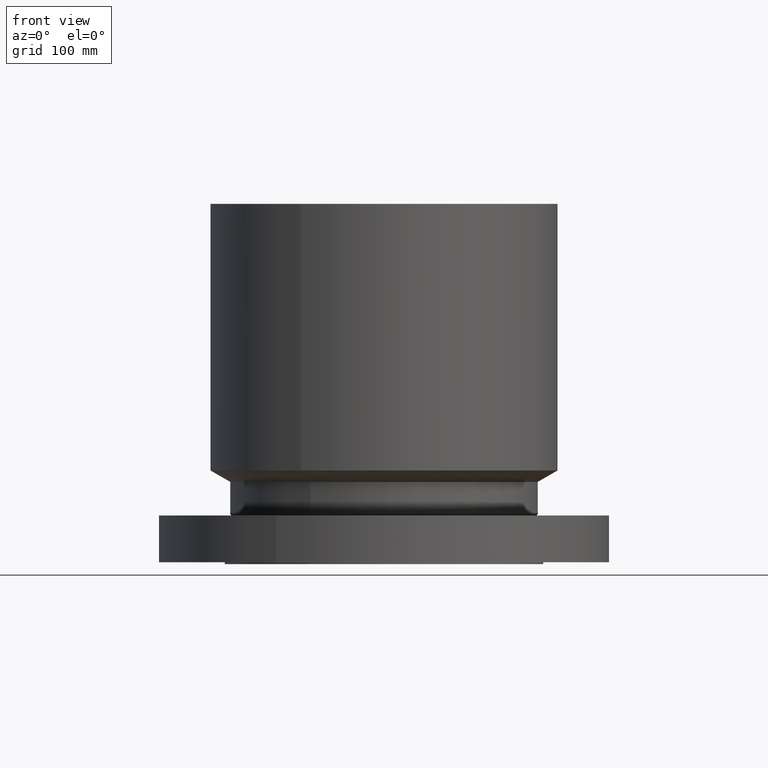
[diagram: clean part render]
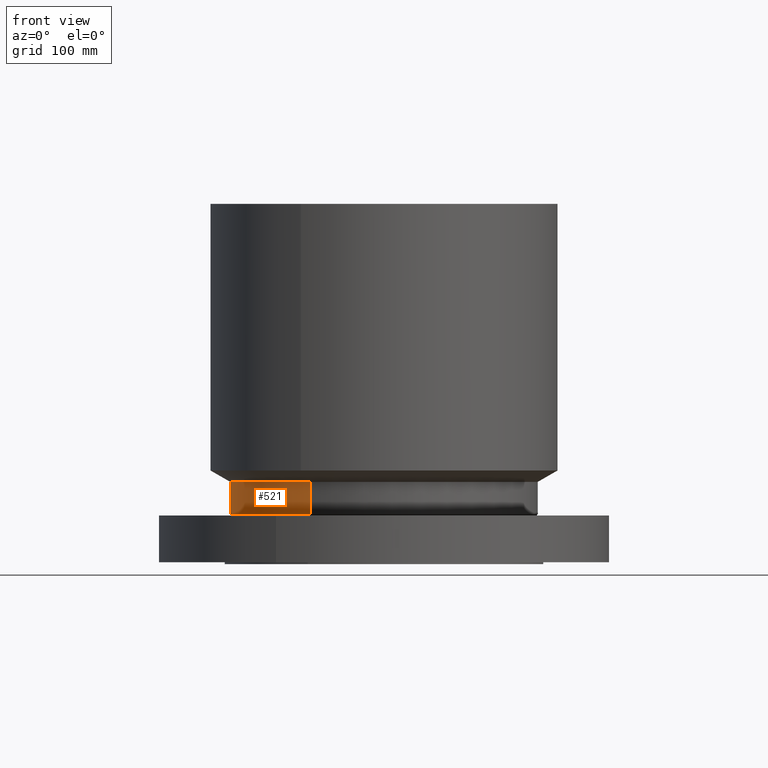
[diagram: same view with one face highlighted and labeled with its STEP entity id]
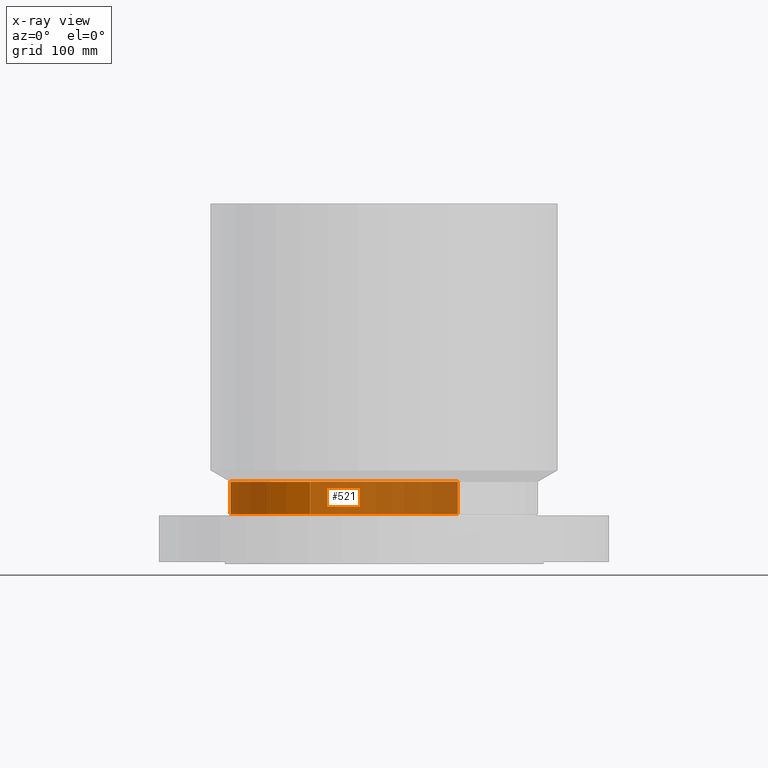
[diagram: x-ray of the same camera — body ghosted, the highlighted face saturated]
A machine part, front view. The second image highlights one B-rep face of the part: STEP entity #521.
The next image is the same camera in x-ray: the body ghosted, the highlighted face saturated — about 65% of this face is hidden behind the body in this view.
In plain terms, the highlighted cylindrical surface (partial cylindrical patch) has radius 130.175 mm, axis along (0, 0, -1).
Its self-contained STEP definition (entity closure, byte-faithful):
#469=AXIS2_PLACEMENT_3D('Circle Axis2P3D',#467,#468,$) ;
#482=AXIS2_PLACEMENT_3D('Cylinder Axis2P3D',#479,#480,#481) ;
#512=AXIS2_PLACEMENT_3D('Circle Axis2P3D',#510,#511,$) ;
#445=CARTESIAN_POINT('Vertex',(2.45705588536,4.49761062971,1.59848076212)) ;
#452=CARTESIAN_POINT('Vertex',(-2.45705588536,-4.49761062971,1.59848076212)) ;
#467=CARTESIAN_POINT('Axis2P3D Location',(0.,0.,1.59848076212)) ;
#479=CARTESIAN_POINT('Axis2P3D Location',(0.,0.,5.93750000002)) ;
#484=CARTESIAN_POINT('Line Origine',(2.45705588536,4.49761062971,2.13799038107)) ;
#488=CARTESIAN_POINT('Vertex',(2.45705588536,4.49761062971,2.67750000001)) ;
#495=CARTESIAN_POINT('Vertex',(-2.45705588536,-4.49761062971,2.67750000001)) ;
#498=CARTESIAN_POINT('Line Origine',(-2.45705588536,-4.49761062971,2.13799038107)) ;
#510=CARTESIAN_POINT('Axis2P3D Location',(0.,0.,2.67750000001)) ;
#468=DIRECTION('Axis2P3D Direction',(-0.,0.,0.0393700787402)) ;
#480=DIRECTION('Axis2P3D Direction',(0.,0.,-0.0393700787402)) ;
#481=DIRECTION('Axis2P3D XDirection',(-0.0188750212049,-0.0345504945626,0.)) ;
#485=DIRECTION('Vector Direction',(0.,0.,-0.0393700787402)) ;
#499=DIRECTION('Vector Direction',(0.,0.,-0.0393700787402)) ;
#511=DIRECTION('Axis2P3D Direction',(0.,0.,-0.0393700787402)) ;
#486=VECTOR('Line Direction',#485,0.0393700787402) ;
#500=VECTOR('Line Direction',#499,0.0393700787402) ;
#516=ORIENTED_EDGE('',*,*,#471,.F.) ;
#517=ORIENTED_EDGE('',*,*,#502,.T.) ;
#518=ORIENTED_EDGE('',*,*,#514,.T.) ;
#519=ORIENTED_EDGE('',*,*,#490,.F.) ;
#521=ADVANCED_FACE('PartBody',(#520),#483,.T.) ;
#470=CIRCLE('generated circle',#469,5.12500000002) ;
#513=CIRCLE('generated circle',#512,5.12500000002) ;
#483=CYLINDRICAL_SURFACE('generated cylinder',#482,5.12500000002) ;
#471=EDGE_CURVE('',#453,#446,#470,.F.) ;
#490=EDGE_CURVE('',#446,#489,#487,.F.) ;
#502=EDGE_CURVE('',#453,#496,#501,.F.) ;
#514=EDGE_CURVE('',#496,#489,#513,.T.) ;
#515=EDGE_LOOP('',(#516,#517,#518,#519)) ;
#520=FACE_OUTER_BOUND('',#515,.T.) ;
#487=LINE('Line',#484,#486) ;
#501=LINE('Line',#498,#500) ;
#446=VERTEX_POINT('',#445) ;
#453=VERTEX_POINT('',#452) ;
#489=VERTEX_POINT('',#488) ;
#496=VERTEX_POINT('',#495) ;